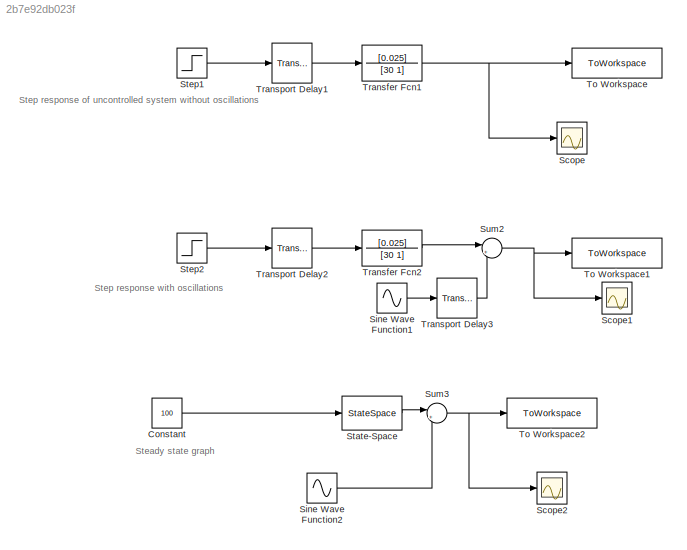
MODEL slx_2b7e92db023f
KIND model
CONFIG AbsTol = auto
CONFIG EnableMultiTasking = off
CONFIG FixedStep = auto
CONFIG MaxStep = auto
CONFIG MinStep = auto
CONFIG RelTol = 1e-3
CONFIG SampleTimeConstraint = Unconstrained
CONFIG SolverName = VariableStepAuto
CONFIG StartTime = 0.0
CONFIG StopTime = 300.0
BLOCK [Constant] Constant
  Value = 100
BLOCK [Scope] Scope
  Floating = off
  NumInputPorts = 1
  Ports = [1]
  ScopeSpecificationString = Simulink.scopes.TimeScopeBlockCfg('CurrentConfiguration', extmgr.ConfigurationSet(extmgr.Configuration('Core','General UI',true),extmgr.Configuration('Core','Source UI',true),extmgr.Configuration('Sources','WiredSimulink',true),extmgr.Configuration('Visuals','Time Domain',true,'SerializedDisplays',{struct('MinYLimReal','-0.57885','MaxYLimReal','2.71687','YLabelReal','','MinYLimMag','0.00000','MaxY...<+1408ch>
BLOCK [Scope] Scope1
  Floating = off
  NumInputPorts = 1
  Ports = [1]
  ScopeSpecificationString = Simulink.scopes.TimeScopeBlockCfg('CurrentConfiguration', extmgr.ConfigurationSet(extmgr.Configuration('Core','General UI',true),extmgr.Configuration('Core','Source UI',true),extmgr.Configuration('Sources','WiredSimulink',true,'DataLoggingVariableName','ScopeData1'),extmgr.Configuration('Visuals','Time Domain',true,'SerializedDisplays',{struct('MinYLimReal','-0.31623','MaxYLimReal','2.84608','YLab...<+1363ch>
BLOCK [Scope] Scope2
  Floating = off
  NumInputPorts = 1
  Ports = [1]
  ScopeSpecificationString = Simulink.scopes.TimeScopeBlockCfg('CurrentConfiguration', extmgr.ConfigurationSet(extmgr.Configuration('Core','General UI',true),extmgr.Configuration('Core','Source UI',true),extmgr.Configuration('Sources','WiredSimulink',true,'DataLoggingVariableName','ScopeData1'),extmgr.Configuration('Visuals','Time Domain',true,'SerializedDisplays',{struct('MinYLimReal','2.46158','MaxYLimReal','2.54126','YLabe...<+1407ch>
BLOCK [Sin] Sine Wave Function1
  Amplitude = 0.075
  Frequency = 10.47
  Ports = [0, 1]
  SampleTime = 0.01
  Samples = 500
BLOCK [Sin] Sine Wave Function2
  Amplitude = 0.075
  Frequency = 10.47
  Ports = [0, 1]
  SampleTime = 0.01
  Samples = 500
BLOCK [StateSpace] State-Space
  A = -0.0333
  C = 8.3333e-04
  D = 0
  InitialCondition = 3000
  Ports = [1, 1]
BLOCK [Step] Step1
  After = 100
  SampleTime = 0.01
  Time = 0
BLOCK [Step] Step2
  After = 100
  SampleTime = 0.01
  Time = 0
BLOCK [Sum] Sum2
  Inputs = |++
  Ports = [2, 1]
BLOCK [Sum] Sum3
  Inputs = |++
  Ports = [2, 1]
BLOCK [ToWorkspace] To Workspace
  FixptAsFi = on
  MaxDataPoints = inf
  Ports = [1]
  SampleTime = -1
  SaveFormat = Structure With Time
  VariableName = simout
BLOCK [ToWorkspace] To Workspace1
  FixptAsFi = on
  MaxDataPoints = inf
  Ports = [1]
  SampleTime = -1
  SaveFormat = Structure With Time
  VariableName = simout1
BLOCK [ToWorkspace] To Workspace2
  FixptAsFi = on
  MaxDataPoints = inf
  Ports = [1]
  SampleTime = -1
  SaveFormat = Structure With Time
  VariableName = simout2
BLOCK [TransferFcn] Transfer Fcn1
  Denominator = [30 1]
  Numerator = [0.025]
BLOCK [TransferFcn] Transfer Fcn2
  Denominator = [30 1]
  Numerator = [0.025]
BLOCK [TransportDelay] Transport Delay1
  DelayTime = 5
  Ports = [1, 1]
BLOCK [TransportDelay] Transport Delay2
  DelayTime = 5
  Ports = [1, 1]
BLOCK [TransportDelay] Transport Delay3
  DelayTime = 5
  Ports = [1, 1]
ANNOTATION (root): Steady state graph
ANNOTATION (root): Step response of uncontrolled system without oscillations
ANNOTATION (root): Step response with oscillations
LINE Constant:1 -> State-Space:1
LINE Sine Wave Function1:1 -> Transport Delay3:1
LINE Sine Wave Function2:1 -> Sum3:2
LINE State-Space:1 -> Sum3:1
LINE Step1:1 -> Transport Delay1:1
LINE Step2:1 -> Transport Delay2:1
NET Sum2:1 -> Scope1:1, To Workspace1:1
NET Sum3:1 -> Scope2:1, To Workspace2:1
NET Transfer Fcn1:1 -> Scope:1, To Workspace:1
LINE Transfer Fcn2:1 -> Sum2:1
LINE Transport Delay1:1 -> Transfer Fcn1:1
LINE Transport Delay2:1 -> Transfer Fcn2:1
LINE Transport Delay3:1 -> Sum2:2
note: NET lines group one-source signal fan-out (src -> all destinations, sorted); 1:1 wires keep LINE
